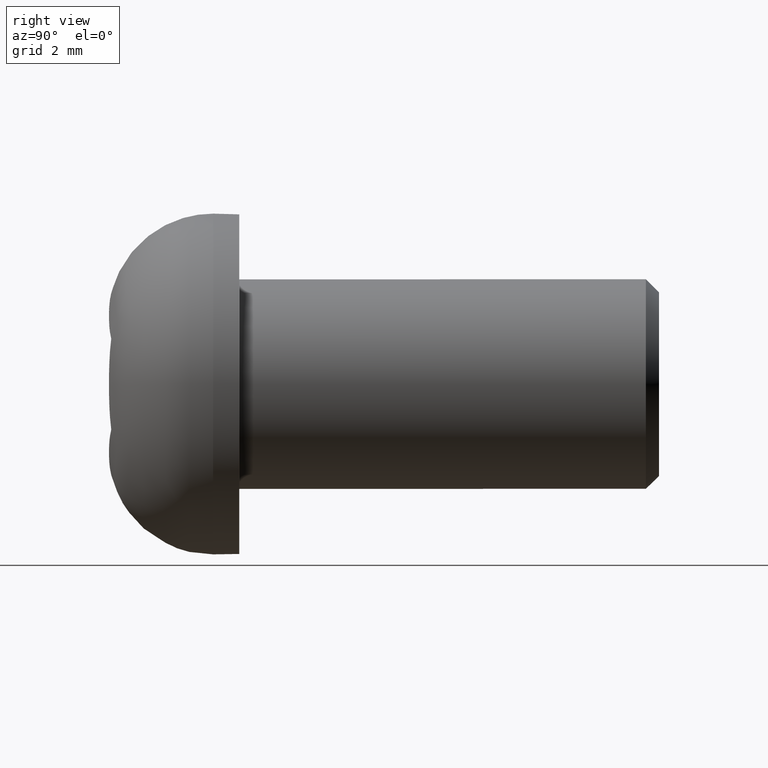
[diagram: clean part render]
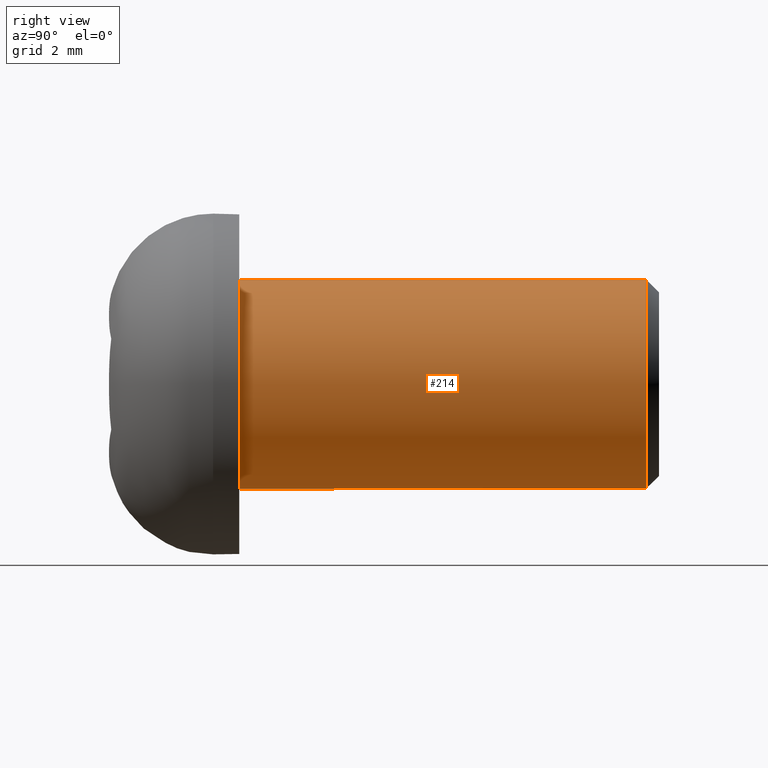
[diagram: same view with one face highlighted and labeled with its STEP entity id]
A machine part, right view. The second image highlights one B-rep face of the part: STEP entity #214.
In plain terms, the highlighted cylindrical surface (bore or boss wall) has radius 4 mm, axis along (0, 1, 0).
Its self-contained STEP definition (entity closure, byte-faithful):
#27=LINE('',#412,#42);
#42=VECTOR('',#285,3.99999999998409);
#57=CYLINDRICAL_SURFACE('',#253,3.99999999998409);
#61=FACE_OUTER_BOUND('',#75,.T.);
#75=EDGE_LOOP('',(#168,#169,#170,#171,#172));
#88=CIRCLE('',#252,3.99999999998409);
#89=CIRCLE('',#254,3.99999999998409);
#90=CIRCLE('',#255,3.99999999998409);
#110=VERTEX_POINT('',#406);
#111=VERTEX_POINT('',#409);
#112=VERTEX_POINT('',#410);
#132=EDGE_CURVE('',#110,#110,#88,.T.);
#133=EDGE_CURVE('',#111,#112,#89,.T.);
#134=EDGE_CURVE('',#111,#110,#27,.T.);
#135=EDGE_CURVE('',#112,#111,#90,.T.);
#168=ORIENTED_EDGE('',*,*,#133,.F.);
#169=ORIENTED_EDGE('',*,*,#134,.T.);
#170=ORIENTED_EDGE('',*,*,#132,.T.);
#171=ORIENTED_EDGE('',*,*,#134,.F.);
#172=ORIENTED_EDGE('',*,*,#135,.F.);
#214=ADVANCED_FACE('',(#61),#57,.T.);
#252=AXIS2_PLACEMENT_3D('',#407,#279,#280);
#253=AXIS2_PLACEMENT_3D('',#408,#281,#282);
#254=AXIS2_PLACEMENT_3D('',#411,#283,#284);
#255=AXIS2_PLACEMENT_3D('',#413,#286,#287);
#279=DIRECTION('center_axis',(0.,1.,0.));
#280=DIRECTION('ref_axis',(1.,0.,0.));
#281=DIRECTION('center_axis',(0.,1.,0.));
#282=DIRECTION('ref_axis',(1.,0.,0.));
#283=DIRECTION('center_axis',(0.,1.,0.));
#284=DIRECTION('ref_axis',(1.,0.,0.));
#285=DIRECTION('',(0.,-1.,0.));
#286=DIRECTION('center_axis',(0.,1.,0.));
#287=DIRECTION('ref_axis',(1.,0.,0.));
#406=CARTESIAN_POINT('',(-3.99999999998409,0.,0.));
#407=CARTESIAN_POINT('Origin',(0.,0.,0.));
#408=CARTESIAN_POINT('Origin',(0.,0.,0.));
#409=CARTESIAN_POINT('',(-3.99999999998409,15.4999999999382,0.));
#410=CARTESIAN_POINT('',(-3.25530414419134,15.4999999999381,2.32443432445043));
#411=CARTESIAN_POINT('Origin',(0.,15.4999999999382,0.));
#412=CARTESIAN_POINT('',(-3.99999999998409,0.,4.89858719656992E-16));
#413=CARTESIAN_POINT('Origin',(0.,15.4999999999382,0.));